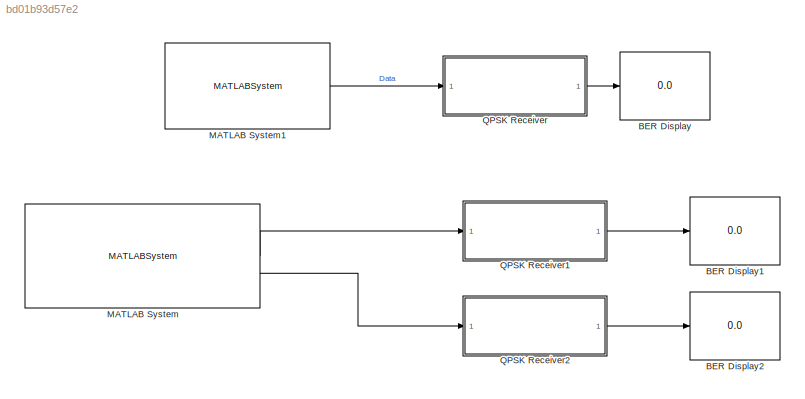
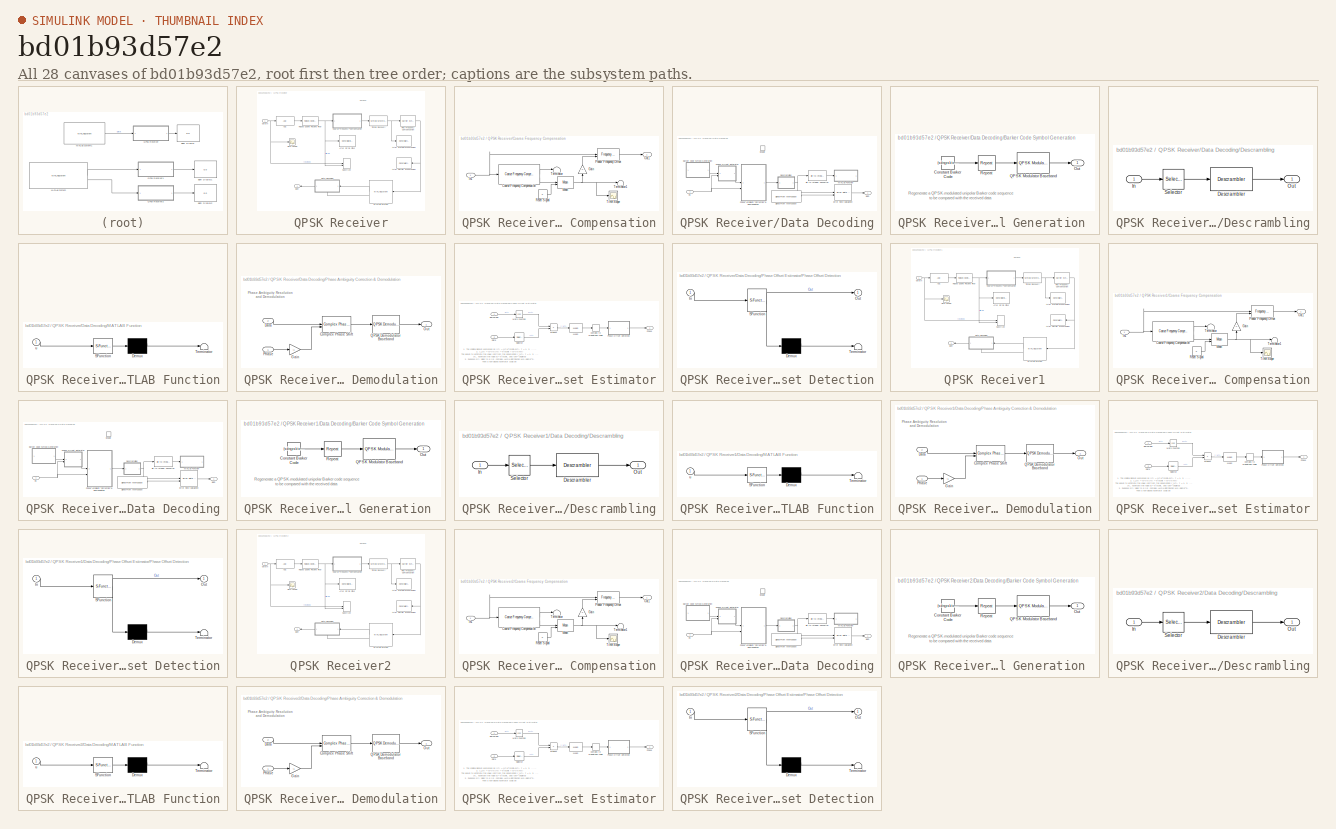
[diagram: thumbnail index - all 28 canvases of the model, root first then tree order]
MODEL slx_bd01b93d57e2
KIND model
CONFIG AbsTol = auto
CONFIG EnableMultiTasking = off
CONFIG FixedStep = auto
CONFIG MaxStep = auto
CONFIG MinStep = auto
CONFIG RelTol = 1e-3
CONFIG SampleTimeConstraint = Unconstrained
CONFIG SolverName = FixedStepDiscrete
CONFIG StartTime = 0.0
CONFIG StopTime = inf
BLOCK [Display] BER Display
  Commented = on
  Decimation = 1
BLOCK [Display] BER Display1
  Decimation = 1
BLOCK [Display] BER Display2
  Decimation = 1
BLOCK [MATLABSystem] MATLAB System
  MaskDisplay = disp(['Nuand' char(10) 'bladeRF 2.0' char(10) 'MIMO']);\nport_label('output',1,'RX1 Samples');\nport_label('output',2,'RX2 Samples');
  MaskType = bladeRF_MIMO_Simulink
  SimulateUsing = Interpreted execution
  System = bladeRF_MIMO_Simulink
  device_string = *:instance=0
  enable_overrun = off
  enable_rx = on
  enable_rx2 = on
  enable_rx2_biastee = off
  enable_rx_biastee = off
  enable_tx = off
  enable_tx2 = off
  enable_tx2_biastee = off
  enable_tx_biastee = off
  enable_underrun = off
  loopback_mode = None
  rx2_agc = SLOW
  rx2_bandwidth = 1.5
  rx2_frequency = sdrqpsktx.BladeRF_Frequency
  rx2_gain = sdrqpsktx.BladeRF_Gain_Rx
  rx2_samplerate = sdrqpsktx.BladeRF_SampleRate
  rx_agc = SLOW
  rx_bandwidth = 1.5
  rx_buf_size = sdrqpsktx.BladeRF.stream.buffer_size
  rx_frequency = sdrqpsktx.BladeRF_Frequency
  rx_gain = sdrqpsktx.BladeRF_Gain_Rx
  rx_num_buffers = sdrqpsktx.BladeRF.stream.n_buffers
  rx_num_transfers = sdrqpsktx.BladeRF.stream.n_transfers
  rx_samplerate = sdrqpsktx.BladeRF_SampleRate
  rx_step_size = sdrqpsktx.BladeRF_FrameLength
  rx_timeout_ms = sdrqpsktx.BladeRF.stream.timeout
  tx2_bandwidth = 1.5
  tx2_frequency = sdrqpsktx.BladeRF_Frequency
  tx2_gain = sdrqpsktx.BladeRF_Gain_Tx
  tx2_samplerate = sdrqpsktx.BladeRF_SampleRate
  tx_bandwidth = 1.5
  tx_buf_size = sdrqpsktx.BladeRF.stream.buffer_size
  tx_frequency = sdrqpsktx.BladeRF_Frequency
  tx_gain = sdrqpsktx.BladeRF_Gain_Tx
  tx_num_buffers = sdrqpsktx.BladeRF.stream.n_buffers
  tx_num_transfers = sdrqpsktx.BladeRF.stream.n_transfers
  tx_samplerate = sdrqpsktx.BladeRF_SampleRate
  tx_step_size = sdrqpsktx.BladeRF_FrameLength
  tx_timeout_ms = sdrqpsktx.BladeRF.stream.timeout
  verbosity = Info
  xb200 = off
BLOCK [MATLABSystem] MATLAB System1
  Commented = on
  MaskDisplay = disp(['Nuand' char(10) 'bladeRF']);\nport_label('output',1,'RX Samples');
  MaskType = bladeRF_Simulink
  SimulateUsing = Interpreted execution
  System = bladeRF_Simulink
  device_string = *:instance=0
  enable_overrun = off
  enable_rx = on
  enable_rx_biastee = off
  enable_tx = off
  enable_tx_biastee = off
  enable_underrun = off
  loopback_mode = None
  rx_agc = SLOW
  rx_bandwidth = 1.5
  rx_buf_size = sdrqpsktx.BladeRF.stream.buffer_size
  rx_frequency = sdrqpsktx.BladeRF_Frequency
  rx_gain = sdrqpsktx.BladeRF_Gain_Rx
  rx_num_buffers = sdrqpsktx.BladeRF.stream.n_buffers
  rx_num_transfers = sdrqpsktx.BladeRF.stream.n_transfers
  rx_samplerate = sdrqpsktx.BladeRF_SampleRate
  rx_step_size = sdrqpsktx.BladeRF_FrameLength
  rx_timeout_ms = sdrqpsktx.BladeRF.stream.timeout
  tx_bandwidth = 1.5
  tx_buf_size = sdrqpsktx.BladeRF.stream.buffer_size
  tx_frequency = sdrqpsktx.BladeRF_Frequency
  tx_gain = sdrqpsktx.BladeRF_Gain_Tx
  tx_num_buffers = sdrqpsktx.BladeRF.stream.n_buffers
  tx_num_transfers = sdrqpsktx.BladeRF.stream.n_transfers
  tx_samplerate = sdrqpsktx.BladeRF_SampleRate
  tx_step_size = sdrqpsktx.BladeRF_FrameLength
  tx_timeout_ms = sdrqpsktx.BladeRF.stream.timeout
  verbosity = Info
  xb200 = off
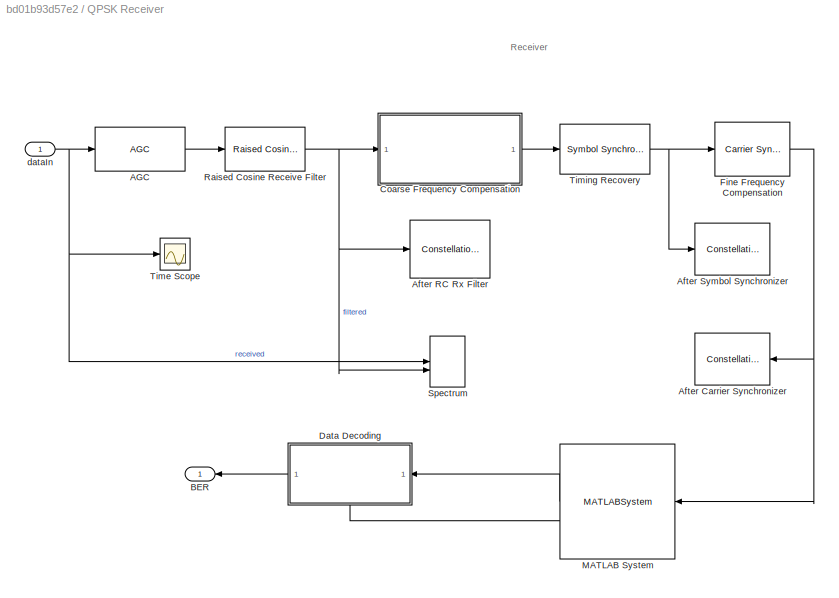
BLOCK [SubSystem] QPSK Receiver
  Commented = on
  NameLocation = top
BLOCK [Reference] QPSK Receiver/AGC  REF=commrfcorlib/AGC
  SourceBlock = commrfcorlib/AGC
  SourceType = AGC
BLOCK [ConstellationDiagram] QPSK Receiver/After Carrier Synchronizer
  Commented = on
  DefaultConfigurationName = comm.scopes.ConstellationDiagramBlockCfg
  GraphicalSettings = {"Style":{"BackgroundColor":[0.15686274509803921,0.15686274509803921,0.15686274509803921],"AxesColor":[0,0,0],"LabelsColor":[0.68627450980392157,0.68627450980392157,0.68627450980392157],"LineStyle":["NONE"],"LineColor":[1,0,0],"LineWidth":1,"Marker":["+"],"IsRefLine":true,"FontSize":"9.5"},"ReferenceConstellation":{"AverageReferencePower":"2","RefConstellationValue":"[0.7071+0.7071i  -0.7071+0.707...<+100ch>  <repeated x3 — deduplicated; at blocks: After Carrier Synchronizer>
  ReferenceConstellation = QPSK
  SamplesPerSymbol = sdrqpsktx.Interpolation
  ScopeFrameLocation = window
  ScopeSpecificationString = comm.scopes.ConstellationDiagramBlockCfg('CurrentConfiguration', extmgr.ConfigurationSet(extmgr.Configuration('Core','General UI',true),extmgr.Configuration('Core','Source UI',true),extmgr.Configuration('Sources','WiredSimulink',true),extmgr.Configuration('Sources','File',false),extmgr.Configuration('Sources','Workspace',false),extmgr.Configuration('Sources','Streaming',false),extmgr.Configuration...<+3012ch>  <repeated x3 — deduplicated; at blocks: After Carrier Synchronizer>
  SymbolsToDisplay = sdrqpsktx.FrameSize
  SymbolsToDisplaySource = Property
  Tag = ScatterPlot
  Title = After Carrier Synchronizer
  WasSavedAsWebScope = on
  WindowPosition = [869.000000,524.000000,425.000000,391.000000,]
  XLimits = [-3.98,3.98]
  YLimits = [-3 3]
BLOCK [ConstellationDiagram] QPSK Receiver/After RC Rx Filter
  Commented = on
  DefaultConfigurationName = comm.scopes.ConstellationDiagramBlockCfg
  GraphicalSettings = {"Style":{"BackgroundColor":[0.15686274509803921,0.15686274509803921,0.15686274509803921],"AxesColor":[0,0,0],"LabelsColor":[0.68627450980392157,0.68627450980392157,0.68627450980392157],"LineStyle":["NONE"],"LineColor":[1,0,0],"LineWidth":1,"Marker":["+"],"IsRefLine":true,"FontSize":"small"},"ReferenceConstellation":{"AverageReferencePower":"2","RefConstellationValue":"[0.7071+0.7071i  -0.7071+0.7...<+102ch>  <repeated x3 — deduplicated; at blocks: After RC Rx Filter>
  ReferenceConstellation = QPSK
  SamplesPerSymbol = sdrqpsktx.Interpolation
  ScopeFrameLocation = window
  ScopeSpecificationString = comm.scopes.ConstellationDiagramBlockCfg('CurrentConfiguration', extmgr.ConfigurationSet(extmgr.Configuration('Core','General UI',true),extmgr.Configuration('Core','Source UI',true),extmgr.Configuration('Sources','WiredSimulink',true),extmgr.Configuration('Sources','Workspace',false),extmgr.Configuration('Sources','Streaming',false),extmgr.Configuration('Sources','Simulink',false),extmgr.Configura...<+2989ch>  <repeated x3 — deduplicated; at blocks: After RC Rx Filter>
  SymbolsToDisplay = sdrqpsktx.FrameSize
  Tag = ScatterPlot
  Title = After Raised Cosine Rx Filter
  WasSavedAsWebScope = on
  WindowPosition = [99.000000,533.000000,320.000000,366.000000,]
  XLimits = [-6.47,6.51]
  YLimits = [-3.17,3.21]
BLOCK [ConstellationDiagram] QPSK Receiver/After Symbol Synchronizer
  Commented = on
  DefaultConfigurationName = comm.scopes.ConstellationDiagramBlockCfg
  GraphicalSettings = {"Style":{"BackgroundColor":[0.15686274509803921,0.15686274509803921,0.15686274509803921],"AxesColor":[0,0,0],"LabelsColor":[0.68627450980392157,0.68627450980392157,0.68627450980392157],"LineStyle":["NONE"],"LineColor":[1,0,0],"LineWidth":1,"Marker":["+"],"IsRefLine":true,"FontSize":"9"},"ReferenceConstellation":{"AverageReferencePower":"2","RefConstellationValue":"[0.7071+0.7071i  -0.7071+0.7071i...<+98ch>  <repeated x3 — deduplicated; at blocks: After Symbol Synchronizer>
  ReferenceConstellation = QPSK
  SamplesPerSymbol = 2
  ScopeFrameLocation = window
  ScopeSpecificationString = comm.scopes.ConstellationDiagramBlockCfg('CurrentConfiguration', extmgr.ConfigurationSet(extmgr.Configuration('Core','General UI',true),extmgr.Configuration('Core','Source UI',true),extmgr.Configuration('Sources','WiredSimulink',true),extmgr.Configuration('Sources','File',false),extmgr.Configuration('Sources','Workspace',false),extmgr.Configuration('Sources','Streaming',false),extmgr.Configuration...<+2982ch>  <repeated x3 — deduplicated; at blocks: After Symbol Synchronizer>
  SymbolsToDisplay = sdrqpsktx.FrameSize
  SymbolsToDisplaySource = Property
  Tag = ScatterPlot
  Title = After Symbol Synchronizer
  WasSavedAsWebScope = on
  WindowPosition = [436.000000,520.000000,411.000000,390.000000,]
  XLimits = [-3.26,3.24]
  YLimits = [-3.01,2.99]
BLOCK [Outport] QPSK Receiver/BER
  VectorParamsAs1DForOutWhenUnconnected = off
BLOCK [SubSystem] QPSK Receiver/Coarse Frequency Compensation
BLOCK [Reference] QPSK Receiver/Coarse Frequency Compensation/Coarse Frequency Compensation  REF=commrfcorlib/Coarse Frequency
Compensator
  SourceBlock = commrfcorlib/Coarse Frequency\nCompensator
  SourceType = Coarse Frequency Compensator
BLOCK [Gain] QPSK Receiver/Coarse Frequency Compensation/Gain
  Gain = -1
  NameLocation = right
BLOCK [Inport] QPSK Receiver/Coarse Frequency Compensation/In1
BLOCK [Reference] QPSK Receiver/Coarse Frequency Compensation/Mean  REF=dspstat3/Mean
  SourceBlock = dspstat3/Mean
  SourceType = Mean
  UserDataPersistent = on
BLOCK [Outport] QPSK Receiver/Coarse Frequency Compensation/Out1
  VectorParamsAs1DForOutWhenUnconnected = off
BLOCK [Reference] QPSK Receiver/Coarse Frequency Compensation/Phase// Frequency Offset  REF=commrflib2/Phase//
Frequency
Offset
  SourceBlock = commrflib2/Phase//\nFrequency\nOffset
  SourceType = Phase/Frequency Offset
BLOCK [Constant] QPSK Receiver/Coarse Frequency Compensation/Reset Signal
  Value = 0
BLOCK [Terminator] QPSK Receiver/Coarse Frequency Compensation/Terminator
BLOCK [Terminator] QPSK Receiver/Coarse Frequency Compensation/Terminator1
BLOCK [Scope] QPSK Receiver/Coarse Frequency Compensation/Time Scope
  Commented = on
  DefaultConfigurationName = spbscopes.TimeScopeBlockCfg
  Floating = off
  NumInputPorts = 1
  ScopeSpecificationString = spbscopes.TimeScopeBlockCfg('CurrentConfiguration', extmgr.ConfigurationSet(extmgr.Configuration('Core','General UI',true),extmgr.Configuration('Core','Source UI',true),extmgr.Configuration('Sources','WiredSimulink',true,'DataLoggingVariableName','ScopeData1'),extmgr.Configuration('Visuals','Time Domain',true),extmgr.Configuration('Tools','Plot Navigation',true),extmgr.Configuration('Tools','Measu...<+34ch>  <repeated x3 — deduplicated; at blocks: Time Scope>
  UserDataPersistent = on
BLOCK [SubSystem] QPSK Receiver/Data Decoding
  NameLocation = top
BLOCK [Outport] QPSK Receiver/Data Decoding/BER
  VectorParamsAs1DForOutWhenUnconnected = off
BLOCK [SubSystem] QPSK Receiver/Data Decoding/Barker Code Symbol Generation 
BLOCK [Constant] QPSK Receiver/Data Decoding/Barker Code Symbol Generation /Constant Barker Code
  OutDataTypeStr = double
  Value = (sdrqpsktx.BarkerCode)' > 0
  VectorParams1D = off
BLOCK [Outport] QPSK Receiver/Data Decoding/Barker Code Symbol Generation /Out
  VectorParamsAs1DForOutWhenUnconnected = off
BLOCK [Reference] QPSK Receiver/Data Decoding/Barker Code Symbol Generation /QPSK Modulator Baseband  REF=commdigbbndpm3/QPSK
Modulator
Baseband
  SourceBlock = commdigbbndpm3/QPSK\nModulator\nBaseband
  SourceType = QPSK Modulator Baseband
BLOCK [Reference] QPSK Receiver/Data Decoding/Barker Code Symbol Generation /Repeat  REF=dspsigops/Repeat
  SourceBlock = dspsigops/Repeat
  SourceType = Repeat
  UserDataPersistent = on
BLOCK [Reference] QPSK Receiver/Data Decoding/Bit to Integer Converter  REF=simulink/Logic and Bit
Operations/Bit to Integer
Converter
  LibrarySourceBlock = commutil2/Bit to Integer\nConverter
  SourceBlock = simulink/Logic and Bit\nOperations/Bit to Integer\nConverter
  SourceType = Bit to Integer Converter
BLOCK [SubSystem] QPSK Receiver/Data Decoding/Descrambling
BLOCK [Reference] QPSK Receiver/Data Decoding/Descrambling/Descrambler  REF=commsequence2/Descrambler
  SourceBlock = commsequence2/Descrambler
  SourceType = Descrambler
BLOCK [Inport] QPSK Receiver/Data Decoding/Descrambling/In
BLOCK [Outport] QPSK Receiver/Data Decoding/Descrambling/Out
  VectorParamsAs1DForOutWhenUnconnected = off
BLOCK [Selector] QPSK Receiver/Data Decoding/Descrambling/Selector
  IndexOptions = Index vector (dialog)
  Indices = [sdrqpsktx.HeaderLength+(1 : sdrqpsktx.PayloadLength)]
  OutputSizes = 1
BLOCK [EnablePort] QPSK Receiver/Data Decoding/Enable
BLOCK [Reference] QPSK Receiver/Data Decoding/Error Rate Calculation  REF=commsink2/Error Rate
Calculation
  SourceBlock = commsink2/Error Rate\nCalculation
  SourceType = Error Rate Calculation
BLOCK [SubSystem] QPSK Receiver/Data Decoding/MATLAB Function
  ErrorFcn = Stateflow.Translate.translate
  PermitHierarchicalResolution = ExplicitOnly
  SFBlockType = MATLAB Function
  TreatAsAtomicUnit = on
BLOCK [Demux] QPSK Receiver/Data Decoding/MATLAB Function/ Demux 
  Outputs = 1
BLOCK [S-Function] QPSK Receiver/Data Decoding/MATLAB Function/ SFunction 
  EnableBusSupport = on
  FunctionName = sf_sfun
  PortCounts = [1 1]
  SFcnIsStateOwnerBlock = off
  SFunctionDeploymentMode = off
  Tag = Stateflow S-Function 1
BLOCK [Terminator] QPSK Receiver/Data Decoding/MATLAB Function/ Terminator 
BLOCK [Inport] QPSK Receiver/Data Decoding/MATLAB Function/u
BLOCK [SubSystem] QPSK Receiver/Data Decoding/Phase Ambiguity Correction & Demodulation
BLOCK [Reference] QPSK Receiver/Data Decoding/Phase Ambiguity Correction & Demodulation/Complex Phase Shift  REF=commutil2/Complex Phase
Shift
  SourceBlock = commutil2/Complex Phase\nShift
  SourceType = Complex Phase Shift
BLOCK [Inport] QPSK Receiver/Data Decoding/Phase Ambiguity Correction & Demodulation/Data
  Port = 2
BLOCK [Gain] QPSK Receiver/Data Decoding/Phase Ambiguity Correction & Demodulation/Gain
  Gain = -1
  OutDataTypeStr = Inherit: Same as input
BLOCK [Outport] QPSK Receiver/Data Decoding/Phase Ambiguity Correction & Demodulation/Out
  VectorParamsAs1DForOutWhenUnconnected = off
BLOCK [Inport] QPSK Receiver/Data Decoding/Phase Ambiguity Correction & Demodulation/Phase
BLOCK [Reference] QPSK Receiver/Data Decoding/Phase Ambiguity Correction & Demodulation/QPSK Demodulator Baseband  REF=commdigbbndpm3/QPSK
Demodulator
Baseband
  SourceBlock = commdigbbndpm3/QPSK\nDemodulator\nBaseband
  SourceType = QPSK Demodulator Baseband
BLOCK [SubSystem] QPSK Receiver/Data Decoding/Phase Offset Estimator
BLOCK [Inport] QPSK Receiver/Data Decoding/Phase Offset Estimator/BarkerRef
BLOCK [ComplexToMagnitudeAngle] QPSK Receiver/Data Decoding/Phase Offset Estimator/Complex to Magnitude-Angle
  Output = Angle
BLOCK [Inport] QPSK Receiver/Data Decoding/Phase Offset Estimator/Data
  Port = 2
BLOCK [Math] QPSK Receiver/Data Decoding/Phase Offset Estimator/Math Function
  Operator = conj
  SignedPower = on
BLOCK [Reference] QPSK Receiver/Data Decoding/Phase Offset Estimator/Mean  REF=dspstat3/Mean
  SourceBlock = dspstat3/Mean
  SourceType = Mean
  UserDataPersistent = on
BLOCK [Outport] QPSK Receiver/Data Decoding/Phase Offset Estimator/Phase
  VectorParamsAs1DForOutWhenUnconnected = off
BLOCK [SubSystem] QPSK Receiver/Data Decoding/Phase Offset Estimator/Phase Offset Detection
  ErrorFcn = Stateflow.Translate.translate
  PermitHierarchicalResolution = ExplicitOnly
  SFBlockType = MATLAB Function
  TreatAsAtomicUnit = on
BLOCK [Demux] QPSK Receiver/Data Decoding/Phase Offset Estimator/Phase Offset Detection/ Demux 
  Outputs = 1
BLOCK [S-Function] QPSK Receiver/Data Decoding/Phase Offset Estimator/Phase Offset Detection/ SFunction 
  EnableBusSupport = on
  FunctionName = sf_sfun
  PortCounts = [1 2]
  SFcnIsStateOwnerBlock = off
  SFunctionDeploymentMode = off
  Tag = Stateflow S-Function 3
BLOCK [Terminator] QPSK Receiver/Data Decoding/Phase Offset Estimator/Phase Offset Detection/ Terminator 
BLOCK [Inport] QPSK Receiver/Data Decoding/Phase Offset Estimator/Phase Offset Detection/In
BLOCK [Outport] QPSK Receiver/Data Decoding/Phase Offset Estimator/Phase Offset Detection/Out
  VectorParamsAs1DForOutWhenUnconnected = off
BLOCK [Product] QPSK Receiver/Data Decoding/Phase Offset Estimator/Product
  RndMeth = Zero
BLOCK [Selector] QPSK Receiver/Data Decoding/Phase Offset Estimator/Selector
  IndexOptions = Index vector (dialog)
  Indices = [1:sdrqpsktx.BarkerLength]
  OutputSizes = 1
BLOCK [Inport] QPSK Receiver/Data Decoding/Rx
BLOCK [Reference] QPSK Receiver/Data Decoding/Signal From Workspace  REF=dspsrcs4/Signal From
Workspace
  SourceBlock = dspsrcs4/Signal From\nWorkspace
  SourceType = Signal From Workspace
BLOCK [Reference] QPSK Receiver/Fine Frequency Compensation  REF=commsync2/Carrier Synchronizer
  SourceBlock = commsync2/Carrier Synchronizer
  SourceType = Carrier Synchronizer
BLOCK [MATLABSystem] QPSK Receiver/MATLAB System
  MaskDisplay = disp(['Frame' char(10) 'Synchronizer']);\nport_label('input',1,'x');\nport_label('output',1,'Frame');\nport_label('output',2,'Valid');
  MaskType = FrameSynchronizer
  OutputLength = sdrqpsktx.FrameSize
  Preamble = sqrt(2)/2 * (-1-1i) * (sdrqpsktx.BarkerCode)'
  SimulateUsing = Code generation
  System = FrameSynchronizer
  Threshold = 0.9
BLOCK [Reference] QPSK Receiver/Raised Cosine Receive Filter  REF=commfilt2/Raised Cosine
Receive Filter
  SourceBlock = commfilt2/Raised Cosine\nReceive Filter
  SourceType = Raised Cosine Receive Filter
  UserDataPersistent = on
BLOCK [SpectrumAnalyzer] QPSK Receiver/Spectrum
  AveragingMethod = Running
  AxesScaling = Manual
  Commented = on
  FFTLength = 128
  GraphicalSettings = {"GraphicalSettings":{"Style":{"BackgroundColor":[0.1568627450980392,0.1568627450980392,0.1568627450980392],"AxesColor":[0,0,0],"LabelsColor":[0.4,0.4,0.4],"PreserveColors":false,"Visible":[true,true],"LineStyle":["-","-"],"LineColor":[[1,1,0.06666666666666667],[0.07058823529411765,0.6235294117647059,1]],"LineWidth":[0.5,0.5],"Marker":["none","none"],"FontSize":"small"},"Cursors":{"Enabled":false,...<+849ch>  <repeated x3 — deduplicated; at blocks: Spectrum>
  Method = Welch
  NumInputPorts = 2
  RBW = 75
  RBWSource = Property
  SampleRate = 100000
  ScopeFrameLocation = window
  ScopeSpecificationString = spbscopes.SpectrumAnalyzerBlockCfg('CurrentConfiguration', extmgr.ConfigurationSet(extmgr.Configuration('Core','General UI',true,'DisplayFullSourceName',true,'ShowPlaybackToolbar',false,'FigureColor',[0.701960784313725 0.701960784313725 0.701960784313725]),extmgr.Configuration('Core','Source UI',true),extmgr.Configuration('Sources','WiredSimulink',true),extmgr.Configuration('Sources','Streaming',f...<+3722ch>  <repeated x3 — deduplicated; at blocks: Spectrum>
  ShowLegend = on
  Span = 2000000.0000000002
  SpectralAverages = 2
  SpectrumUnits = dBW
  StartFrequency = -1000000.0000000001
  StopFrequency = 1000000.0000000001
  Title = After Raised Cosine Rx Filter
  WasSavedAsWebScope = on
  WindowPosition = [271.000000,314.000000,762.000000,519.000000,]
  YLabel = Power Spectrum
  YLimits = [-137.6344738236879266 40]
BLOCK [Scope] QPSK Receiver/Time Scope
  Commented = on
  DefaultConfigurationName = spbscopes.TimeScopeBlockCfg
  Floating = off
  NumInputPorts = 1
  ScopeSpecificationString = spbscopes.TimeScopeBlockCfg('CurrentConfiguration', extmgr.ConfigurationSet(extmgr.Configuration('Core','General UI',true),extmgr.Configuration('Core','Source UI',true),extmgr.Configuration('Sources','WiredSimulink',true,'DataLoggingVariableName','ScopeData1'),extmgr.Configuration('Visuals','Time Domain',true,'DisplayPropertyDefaults',struct('MinYLimReal','-1','MaxYLimReal','1','YLabelReal','Ampli...<+1469ch>  <repeated x3 — deduplicated; at blocks: Time Scope>
  UserDataPersistent = on
BLOCK [Reference] QPSK Receiver/Timing Recovery  REF=commsync2/Symbol Synchronizer
  SourceBlock = commsync2/Symbol Synchronizer
  SourceType = Symbol Synchronizer
BLOCK [Inport] QPSK Receiver/dataIn
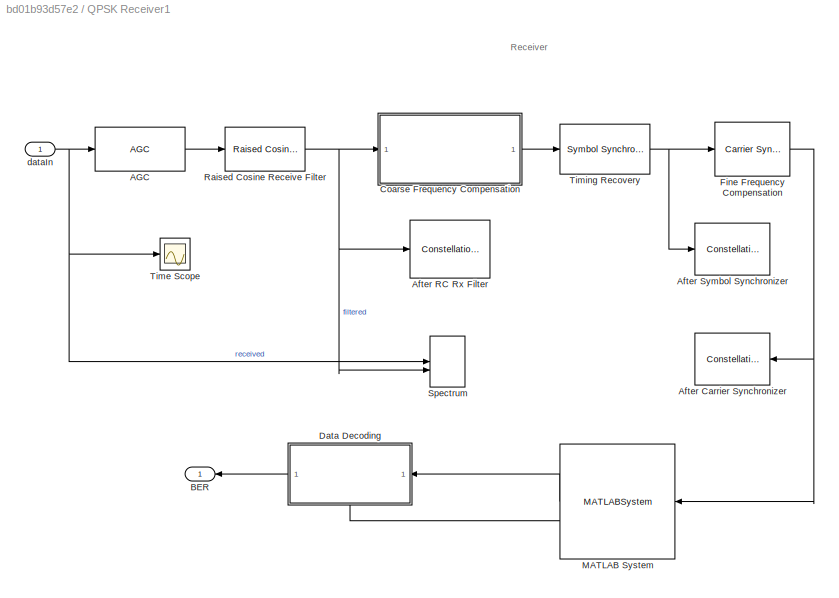
BLOCK [SubSystem] QPSK Receiver1
  NameLocation = top
BLOCK [Reference] QPSK Receiver1/AGC  REF=commrfcorlib/AGC
  SourceBlock = commrfcorlib/AGC
  SourceType = AGC
BLOCK [ConstellationDiagram] QPSK Receiver1/After Carrier Synchronizer
  Commented = on
  DefaultConfigurationName = comm.scopes.ConstellationDiagramBlockCfg
  ReferenceConstellation = QPSK
  SamplesPerSymbol = sdrqpsktx.Interpolation
  ScopeFrameLocation = window
  SymbolsToDisplay = sdrqpsktx.FrameSize
  SymbolsToDisplaySource = Property
  Tag = ScatterPlot
  Title = After Carrier Synchronizer
  WasSavedAsWebScope = on
  WindowPosition = [869.000000,524.000000,425.000000,391.000000,]
  XLimits = [-3.98,3.98]
  YLimits = [-3 3]
BLOCK [ConstellationDiagram] QPSK Receiver1/After RC Rx Filter
  Commented = on
  DefaultConfigurationName = comm.scopes.ConstellationDiagramBlockCfg
  ReferenceConstellation = QPSK
  SamplesPerSymbol = sdrqpsktx.Interpolation
  ScopeFrameLocation = window
  SymbolsToDisplay = sdrqpsktx.FrameSize
  Tag = ScatterPlot
  Title = After Raised Cosine Rx Filter
  WasSavedAsWebScope = on
  WindowPosition = [99.000000,533.000000,320.000000,366.000000,]
  XLimits = [-6.47,6.51]
  YLimits = [-3.17,3.21]
BLOCK [ConstellationDiagram] QPSK Receiver1/After Symbol Synchronizer
  Commented = on
  DefaultConfigurationName = comm.scopes.ConstellationDiagramBlockCfg
  ReferenceConstellation = QPSK
  SamplesPerSymbol = 2
  ScopeFrameLocation = window
  SymbolsToDisplay = sdrqpsktx.FrameSize
  SymbolsToDisplaySource = Property
  Tag = ScatterPlot
  Title = After Symbol Synchronizer
  WasSavedAsWebScope = on
  WindowPosition = [436.000000,520.000000,411.000000,390.000000,]
  XLimits = [-3.26,3.24]
  YLimits = [-3.01,2.99]
BLOCK [Outport] QPSK Receiver1/BER
  VectorParamsAs1DForOutWhenUnconnected = off
BLOCK [SubSystem] QPSK Receiver1/Coarse Frequency Compensation
BLOCK [Reference] QPSK Receiver1/Coarse Frequency Compensation/Coarse Frequency Compensation  REF=commrfcorlib/Coarse Frequency
Compensator
  SourceBlock = commrfcorlib/Coarse Frequency\nCompensator
  SourceType = Coarse Frequency Compensator
BLOCK [Gain] QPSK Receiver1/Coarse Frequency Compensation/Gain
  Gain = -1
  NameLocation = right
BLOCK [Inport] QPSK Receiver1/Coarse Frequency Compensation/In1
BLOCK [Reference] QPSK Receiver1/Coarse Frequency Compensation/Mean  REF=dspstat3/Mean
  SourceBlock = dspstat3/Mean
  SourceType = Mean
  UserDataPersistent = on
BLOCK [Outport] QPSK Receiver1/Coarse Frequency Compensation/Out1
  VectorParamsAs1DForOutWhenUnconnected = off
BLOCK [Reference] QPSK Receiver1/Coarse Frequency Compensation/Phase// Frequency Offset  REF=commrflib2/Phase//
Frequency
Offset
  SourceBlock = commrflib2/Phase//\nFrequency\nOffset
  SourceType = Phase/Frequency Offset
BLOCK [Constant] QPSK Receiver1/Coarse Frequency Compensation/Reset Signal
  Value = 0
BLOCK [Terminator] QPSK Receiver1/Coarse Frequency Compensation/Terminator
BLOCK [Terminator] QPSK Receiver1/Coarse Frequency Compensation/Terminator1
BLOCK [Scope] QPSK Receiver1/Coarse Frequency Compensation/Time Scope
  Commented = on
  DefaultConfigurationName = spbscopes.TimeScopeBlockCfg
  Floating = off
  NumInputPorts = 1
  UserDataPersistent = on
BLOCK [SubSystem] QPSK Receiver1/Data Decoding
  NameLocation = top
BLOCK [Outport] QPSK Receiver1/Data Decoding/BER
  VectorParamsAs1DForOutWhenUnconnected = off
BLOCK [SubSystem] QPSK Receiver1/Data Decoding/Barker Code Symbol Generation 
BLOCK [Constant] QPSK Receiver1/Data Decoding/Barker Code Symbol Generation /Constant Barker Code
  OutDataTypeStr = double
  Value = (sdrqpsktx.BarkerCode)' > 0
  VectorParams1D = off
BLOCK [Outport] QPSK Receiver1/Data Decoding/Barker Code Symbol Generation /Out
  VectorParamsAs1DForOutWhenUnconnected = off
BLOCK [Reference] QPSK Receiver1/Data Decoding/Barker Code Symbol Generation /QPSK Modulator Baseband  REF=commdigbbndpm3/QPSK
Modulator
Baseband
  SourceBlock = commdigbbndpm3/QPSK\nModulator\nBaseband
  SourceType = QPSK Modulator Baseband
BLOCK [Reference] QPSK Receiver1/Data Decoding/Barker Code Symbol Generation /Repeat  REF=dspsigops/Repeat
  SourceBlock = dspsigops/Repeat
  SourceType = Repeat
  UserDataPersistent = on
BLOCK [Reference] QPSK Receiver1/Data Decoding/Bit to Integer Converter  REF=simulink/Logic and Bit
Operations/Bit to Integer
Converter
  LibrarySourceBlock = commutil2/Bit to Integer\nConverter
  SourceBlock = simulink/Logic and Bit\nOperations/Bit to Integer\nConverter
  SourceType = Bit to Integer Converter
BLOCK [SubSystem] QPSK Receiver1/Data Decoding/Descrambling
BLOCK [Reference] QPSK Receiver1/Data Decoding/Descrambling/Descrambler  REF=commsequence2/Descrambler
  SourceBlock = commsequence2/Descrambler
  SourceType = Descrambler
BLOCK [Inport] QPSK Receiver1/Data Decoding/Descrambling/In
BLOCK [Outport] QPSK Receiver1/Data Decoding/Descrambling/Out
  VectorParamsAs1DForOutWhenUnconnected = off
BLOCK [Selector] QPSK Receiver1/Data Decoding/Descrambling/Selector
  IndexOptions = Index vector (dialog)
  Indices = [sdrqpsktx.HeaderLength+(1 : sdrqpsktx.PayloadLength)]
  OutputSizes = 1
BLOCK [EnablePort] QPSK Receiver1/Data Decoding/Enable
BLOCK [Reference] QPSK Receiver1/Data Decoding/Error Rate Calculation  REF=commsink2/Error Rate
Calculation
  SourceBlock = commsink2/Error Rate\nCalculation
  SourceType = Error Rate Calculation
BLOCK [SubSystem] QPSK Receiver1/Data Decoding/MATLAB Function
  ErrorFcn = Stateflow.Translate.translate
  PermitHierarchicalResolution = ExplicitOnly
  SFBlockType = MATLAB Function
  TreatAsAtomicUnit = on
BLOCK [Demux] QPSK Receiver1/Data Decoding/MATLAB Function/ Demux 
  Outputs = 1
BLOCK [S-Function] QPSK Receiver1/Data Decoding/MATLAB Function/ SFunction 
  EnableBusSupport = on
  FunctionName = sf_sfun
  PortCounts = [1 1]
  SFcnIsStateOwnerBlock = off
  SFunctionDeploymentMode = off
  Tag = Stateflow S-Function 2
BLOCK [Terminator] QPSK Receiver1/Data Decoding/MATLAB Function/ Terminator 
BLOCK [Inport] QPSK Receiver1/Data Decoding/MATLAB Function/u
BLOCK [SubSystem] QPSK Receiver1/Data Decoding/Phase Ambiguity Correction & Demodulation
BLOCK [Reference] QPSK Receiver1/Data Decoding/Phase Ambiguity Correction & Demodulation/Complex Phase Shift  REF=commutil2/Complex Phase
Shift
  SourceBlock = commutil2/Complex Phase\nShift
  SourceType = Complex Phase Shift
BLOCK [Inport] QPSK Receiver1/Data Decoding/Phase Ambiguity Correction & Demodulation/Data
  Port = 2
BLOCK [Gain] QPSK Receiver1/Data Decoding/Phase Ambiguity Correction & Demodulation/Gain
  Gain = -1
  OutDataTypeStr = Inherit: Same as input
BLOCK [Outport] QPSK Receiver1/Data Decoding/Phase Ambiguity Correction & Demodulation/Out
  VectorParamsAs1DForOutWhenUnconnected = off
BLOCK [Inport] QPSK Receiver1/Data Decoding/Phase Ambiguity Correction & Demodulation/Phase
BLOCK [Reference] QPSK Receiver1/Data Decoding/Phase Ambiguity Correction & Demodulation/QPSK Demodulator Baseband  REF=commdigbbndpm3/QPSK
Demodulator
Baseband
  SourceBlock = commdigbbndpm3/QPSK\nDemodulator\nBaseband
  SourceType = QPSK Demodulator Baseband
BLOCK [SubSystem] QPSK Receiver1/Data Decoding/Phase Offset Estimator
BLOCK [Inport] QPSK Receiver1/Data Decoding/Phase Offset Estimator/BarkerRef
BLOCK [ComplexToMagnitudeAngle] QPSK Receiver1/Data Decoding/Phase Offset Estimator/Complex to Magnitude-Angle
  Output = Angle
BLOCK [Inport] QPSK Receiver1/Data Decoding/Phase Offset Estimator/Data
  Port = 2
BLOCK [Math] QPSK Receiver1/Data Decoding/Phase Offset Estimator/Math Function
  Operator = conj
  SignedPower = on
BLOCK [Reference] QPSK Receiver1/Data Decoding/Phase Offset Estimator/Mean  REF=dspstat3/Mean
  SourceBlock = dspstat3/Mean
  SourceType = Mean
  UserDataPersistent = on
BLOCK [Outport] QPSK Receiver1/Data Decoding/Phase Offset Estimator/Phase
  VectorParamsAs1DForOutWhenUnconnected = off
BLOCK [SubSystem] QPSK Receiver1/Data Decoding/Phase Offset Estimator/Phase Offset Detection
  ErrorFcn = Stateflow.Translate.translate
  PermitHierarchicalResolution = ExplicitOnly
  SFBlockType = MATLAB Function
  TreatAsAtomicUnit = on
BLOCK [Demux] QPSK Receiver1/Data Decoding/Phase Offset Estimator/Phase Offset Detection/ Demux 
  Outputs = 1
BLOCK [S-Function] QPSK Receiver1/Data Decoding/Phase Offset Estimator/Phase Offset Detection/ SFunction 
  EnableBusSupport = on
  FunctionName = sf_sfun
  PortCounts = [1 2]
  SFcnIsStateOwnerBlock = off
  SFunctionDeploymentMode = off
  Tag = Stateflow S-Function 4
BLOCK [Terminator] QPSK Receiver1/Data Decoding/Phase Offset Estimator/Phase Offset Detection/ Terminator 
BLOCK [Inport] QPSK Receiver1/Data Decoding/Phase Offset Estimator/Phase Offset Detection/In
BLOCK [Outport] QPSK Receiver1/Data Decoding/Phase Offset Estimator/Phase Offset Detection/Out
  VectorParamsAs1DForOutWhenUnconnected = off
BLOCK [Product] QPSK Receiver1/Data Decoding/Phase Offset Estimator/Product
  RndMeth = Zero
BLOCK [Selector] QPSK Receiver1/Data Decoding/Phase Offset Estimator/Selector
  IndexOptions = Index vector (dialog)
  Indices = [1:sdrqpsktx.BarkerLength]
  OutputSizes = 1
BLOCK [Inport] QPSK Receiver1/Data Decoding/Rx
BLOCK [Reference] QPSK Receiver1/Data Decoding/Signal From Workspace  REF=dspsrcs4/Signal From
Workspace
  SourceBlock = dspsrcs4/Signal From\nWorkspace
  SourceType = Signal From Workspace
BLOCK [Reference] QPSK Receiver1/Fine Frequency Compensation  REF=commsync2/Carrier Synchronizer
  SourceBlock = commsync2/Carrier Synchronizer
  SourceType = Carrier Synchronizer
BLOCK [MATLABSystem] QPSK Receiver1/MATLAB System
  MaskDisplay = disp(['Frame' char(10) 'Synchronizer']);\nport_label('input',1,'x');\nport_label('output',1,'Frame');\nport_label('output',2,'Valid');
  MaskType = FrameSynchronizer
  OutputLength = sdrqpsktx.FrameSize
  Preamble = sqrt(2)/2 * (-1-1i) * (sdrqpsktx.BarkerCode)'
  SimulateUsing = Code generation
  System = FrameSynchronizer
  Threshold = 0.9
BLOCK [Reference] QPSK Receiver1/Raised Cosine Receive Filter  REF=commfilt2/Raised Cosine
Receive Filter
  SourceBlock = commfilt2/Raised Cosine\nReceive Filter
  SourceType = Raised Cosine Receive Filter
  UserDataPersistent = on
BLOCK [SpectrumAnalyzer] QPSK Receiver1/Spectrum
  AveragingMethod = Running
  AxesScaling = Manual
  Commented = on
  FFTLength = 128
  Method = Welch
  NumInputPorts = 2
  RBW = 75
  RBWSource = Property
  SampleRate = 100000
  ScopeFrameLocation = window
  ShowLegend = on
  Span = 2000000.0000000002
  SpectralAverages = 2
  SpectrumUnits = dBW
  StartFrequency = -1000000.0000000001
  StopFrequency = 1000000.0000000001
  Title = After Raised Cosine Rx Filter
  WasSavedAsWebScope = on
  WindowPosition = [544.000000,501.000000,709.000000,426.000000,]
  YLabel = Power Spectrum
  YLimits = [-137.6344738236879266 40]
BLOCK [Scope] QPSK Receiver1/Time Scope
  Commented = on
  DefaultConfigurationName = spbscopes.TimeScopeBlockCfg
  Floating = off
  NumInputPorts = 1
  UserDataPersistent = on
BLOCK [Reference] QPSK Receiver1/Timing Recovery  REF=commsync2/Symbol Synchronizer
  SourceBlock = commsync2/Symbol Synchronizer
  SourceType = Symbol Synchronizer
BLOCK [Inport] QPSK Receiver1/dataIn
BLOCK [SubSystem] QPSK Receiver2
  NameLocation = top
BLOCK [Reference] QPSK Receiver2/AGC  REF=commrfcorlib/AGC
  SourceBlock = commrfcorlib/AGC
  SourceType = AGC
BLOCK [ConstellationDiagram] QPSK Receiver2/After Carrier Synchronizer
  Commented = on
  DefaultConfigurationName = comm.scopes.ConstellationDiagramBlockCfg
  ReferenceConstellation = QPSK
  SamplesPerSymbol = sdrqpsktx.Interpolation
  ScopeFrameLocation = window
  SymbolsToDisplay = sdrqpsktx.FrameSize
  SymbolsToDisplaySource = Property
  Tag = ScatterPlot
  Title = After Carrier Synchronizer
  WasSavedAsWebScope = on
  WindowPosition = [869.000000,524.000000,425.000000,391.000000,]
  XLimits = [-3.98,3.98]
  YLimits = [-3 3]
BLOCK [ConstellationDiagram] QPSK Receiver2/After RC Rx Filter
  Commented = on
  DefaultConfigurationName = comm.scopes.ConstellationDiagramBlockCfg
  ReferenceConstellation = QPSK
  SamplesPerSymbol = sdrqpsktx.Interpolation
  ScopeFrameLocation = window
  SymbolsToDisplay = sdrqpsktx.FrameSize
  Tag = ScatterPlot
  Title = After Raised Cosine Rx Filter
  WasSavedAsWebScope = on
  WindowPosition = [99.000000,533.000000,320.000000,366.000000,]
  XLimits = [-6.47,6.51]
  YLimits = [-3.17,3.21]
BLOCK [ConstellationDiagram] QPSK Receiver2/After Symbol Synchronizer
  Commented = on
  DefaultConfigurationName = comm.scopes.ConstellationDiagramBlockCfg
  ReferenceConstellation = QPSK
  SamplesPerSymbol = 2
  ScopeFrameLocation = window
  SymbolsToDisplay = sdrqpsktx.FrameSize
  SymbolsToDisplaySource = Property
  Tag = ScatterPlot
  Title = After Symbol Synchronizer
  WasSavedAsWebScope = on
  WindowPosition = [436.000000,520.000000,411.000000,390.000000,]
  XLimits = [-3.26,3.24]
  YLimits = [-3.01,2.99]
BLOCK [Outport] QPSK Receiver2/BER
  VectorParamsAs1DForOutWhenUnconnected = off
BLOCK [SubSystem] QPSK Receiver2/Coarse Frequency Compensation
BLOCK [Reference] QPSK Receiver2/Coarse Frequency Compensation/Coarse Frequency Compensation  REF=commrfcorlib/Coarse Frequency
Compensator
  SourceBlock = commrfcorlib/Coarse Frequency\nCompensator
  SourceType = Coarse Frequency Compensator
BLOCK [Gain] QPSK Receiver2/Coarse Frequency Compensation/Gain
  Gain = -1
  NameLocation = right
BLOCK [Inport] QPSK Receiver2/Coarse Frequency Compensation/In1
BLOCK [Reference] QPSK Receiver2/Coarse Frequency Compensation/Mean  REF=dspstat3/Mean
  SourceBlock = dspstat3/Mean
  SourceType = Mean
  UserDataPersistent = on
BLOCK [Outport] QPSK Receiver2/Coarse Frequency Compensation/Out1
  VectorParamsAs1DForOutWhenUnconnected = off
BLOCK [Reference] QPSK Receiver2/Coarse Frequency Compensation/Phase// Frequency Offset  REF=commrflib2/Phase//
Frequency
Offset
  SourceBlock = commrflib2/Phase//\nFrequency\nOffset
  SourceType = Phase/Frequency Offset
BLOCK [Constant] QPSK Receiver2/Coarse Frequency Compensation/Reset Signal
  Value = 0
BLOCK [Terminator] QPSK Receiver2/Coarse Frequency Compensation/Terminator
BLOCK [Terminator] QPSK Receiver2/Coarse Frequency Compensation/Terminator1
BLOCK [Scope] QPSK Receiver2/Coarse Frequency Compensation/Time Scope
  Commented = on
  DefaultConfigurationName = spbscopes.TimeScopeBlockCfg
  Floating = off
  NumInputPorts = 1
  UserDataPersistent = on
BLOCK [SubSystem] QPSK Receiver2/Data Decoding
  NameLocation = top
BLOCK [Outport] QPSK Receiver2/Data Decoding/BER
  VectorParamsAs1DForOutWhenUnconnected = off
BLOCK [SubSystem] QPSK Receiver2/Data Decoding/Barker Code Symbol Generation 
BLOCK [Constant] QPSK Receiver2/Data Decoding/Barker Code Symbol Generation /Constant Barker Code
  OutDataTypeStr = double
  Value = (sdrqpsktx.BarkerCode)' > 0
  VectorParams1D = off
BLOCK [Outport] QPSK Receiver2/Data Decoding/Barker Code Symbol Generation /Out
  VectorParamsAs1DForOutWhenUnconnected = off
BLOCK [Reference] QPSK Receiver2/Data Decoding/Barker Code Symbol Generation /QPSK Modulator Baseband  REF=commdigbbndpm3/QPSK
Modulator
Baseband
  SourceBlock = commdigbbndpm3/QPSK\nModulator\nBaseband
  SourceType = QPSK Modulator Baseband
BLOCK [Reference] QPSK Receiver2/Data Decoding/Barker Code Symbol Generation /Repeat  REF=dspsigops/Repeat
  SourceBlock = dspsigops/Repeat
  SourceType = Repeat
  UserDataPersistent = on
BLOCK [Reference] QPSK Receiver2/Data Decoding/Bit to Integer Converter  REF=simulink/Logic and Bit
Operations/Bit to Integer
Converter
  LibrarySourceBlock = commutil2/Bit to Integer\nConverter
  SourceBlock = simulink/Logic and Bit\nOperations/Bit to Integer\nConverter
  SourceType = Bit to Integer Converter
BLOCK [SubSystem] QPSK Receiver2/Data Decoding/Descrambling
BLOCK [Reference] QPSK Receiver2/Data Decoding/Descrambling/Descrambler  REF=commsequence2/Descrambler
  SourceBlock = commsequence2/Descrambler
  SourceType = Descrambler
BLOCK [Inport] QPSK Receiver2/Data Decoding/Descrambling/In
BLOCK [Outport] QPSK Receiver2/Data Decoding/Descrambling/Out
  VectorParamsAs1DForOutWhenUnconnected = off
BLOCK [Selector] QPSK Receiver2/Data Decoding/Descrambling/Selector
  IndexOptions = Index vector (dialog)
  Indices = [sdrqpsktx.HeaderLength+(1 : sdrqpsktx.PayloadLength)]
  OutputSizes = 1
BLOCK [EnablePort] QPSK Receiver2/Data Decoding/Enable
BLOCK [Reference] QPSK Receiver2/Data Decoding/Error Rate Calculation  REF=commsink2/Error Rate
Calculation
  SourceBlock = commsink2/Error Rate\nCalculation
  SourceType = Error Rate Calculation
BLOCK [SubSystem] QPSK Receiver2/Data Decoding/MATLAB Function
  ErrorFcn = Stateflow.Translate.translate
  PermitHierarchicalResolution = ExplicitOnly
  SFBlockType = MATLAB Function
  TreatAsAtomicUnit = on
BLOCK [Demux] QPSK Receiver2/Data Decoding/MATLAB Function/ Demux 
  Outputs = 1
BLOCK [S-Function] QPSK Receiver2/Data Decoding/MATLAB Function/ SFunction 
  EnableBusSupport = on
  FunctionName = sf_sfun
  PortCounts = [1 1]
  SFcnIsStateOwnerBlock = off
  SFunctionDeploymentMode = off
  Tag = Stateflow S-Function 5
BLOCK [Terminator] QPSK Receiver2/Data Decoding/MATLAB Function/ Terminator 
BLOCK [Inport] QPSK Receiver2/Data Decoding/MATLAB Function/u
BLOCK [SubSystem] QPSK Receiver2/Data Decoding/Phase Ambiguity Correction & Demodulation
BLOCK [Reference] QPSK Receiver2/Data Decoding/Phase Ambiguity Correction & Demodulation/Complex Phase Shift  REF=commutil2/Complex Phase
Shift
  SourceBlock = commutil2/Complex Phase\nShift
  SourceType = Complex Phase Shift
BLOCK [Inport] QPSK Receiver2/Data Decoding/Phase Ambiguity Correction & Demodulation/Data
  Port = 2
BLOCK [Gain] QPSK Receiver2/Data Decoding/Phase Ambiguity Correction & Demodulation/Gain
  Gain = -1
  OutDataTypeStr = Inherit: Same as input
BLOCK [Outport] QPSK Receiver2/Data Decoding/Phase Ambiguity Correction & Demodulation/Out
  VectorParamsAs1DForOutWhenUnconnected = off
BLOCK [Inport] QPSK Receiver2/Data Decoding/Phase Ambiguity Correction & Demodulation/Phase
BLOCK [Reference] QPSK Receiver2/Data Decoding/Phase Ambiguity Correction & Demodulation/QPSK Demodulator Baseband  REF=commdigbbndpm3/QPSK
Demodulator
Baseband
  SourceBlock = commdigbbndpm3/QPSK\nDemodulator\nBaseband
  SourceType = QPSK Demodulator Baseband
BLOCK [SubSystem] QPSK Receiver2/Data Decoding/Phase Offset Estimator
BLOCK [Inport] QPSK Receiver2/Data Decoding/Phase Offset Estimator/BarkerRef
BLOCK [ComplexToMagnitudeAngle] QPSK Receiver2/Data Decoding/Phase Offset Estimator/Complex to Magnitude-Angle
  Output = Angle
BLOCK [Inport] QPSK Receiver2/Data Decoding/Phase Offset Estimator/Data
  Port = 2
BLOCK [Math] QPSK Receiver2/Data Decoding/Phase Offset Estimator/Math Function
  Operator = conj
  SignedPower = on
BLOCK [Reference] QPSK Receiver2/Data Decoding/Phase Offset Estimator/Mean  REF=dspstat3/Mean
  SourceBlock = dspstat3/Mean
  SourceType = Mean
  UserDataPersistent = on
BLOCK [Outport] QPSK Receiver2/Data Decoding/Phase Offset Estimator/Phase
  VectorParamsAs1DForOutWhenUnconnected = off
BLOCK [SubSystem] QPSK Receiver2/Data Decoding/Phase Offset Estimator/Phase Offset Detection
  ErrorFcn = Stateflow.Translate.translate
  PermitHierarchicalResolution = ExplicitOnly
  SFBlockType = MATLAB Function
  TreatAsAtomicUnit = on
BLOCK [Demux] QPSK Receiver2/Data Decoding/Phase Offset Estimator/Phase Offset Detection/ Demux 
  Outputs = 1
BLOCK [S-Function] QPSK Receiver2/Data Decoding/Phase Offset Estimator/Phase Offset Detection/ SFunction 
  EnableBusSupport = on
  FunctionName = sf_sfun
  PortCounts = [1 2]
  SFcnIsStateOwnerBlock = off
  SFunctionDeploymentMode = off
  Tag = Stateflow S-Function 6
BLOCK [Terminator] QPSK Receiver2/Data Decoding/Phase Offset Estimator/Phase Offset Detection/ Terminator 
BLOCK [Inport] QPSK Receiver2/Data Decoding/Phase Offset Estimator/Phase Offset Detection/In
BLOCK [Outport] QPSK Receiver2/Data Decoding/Phase Offset Estimator/Phase Offset Detection/Out
  VectorParamsAs1DForOutWhenUnconnected = off
BLOCK [Product] QPSK Receiver2/Data Decoding/Phase Offset Estimator/Product
  RndMeth = Zero
BLOCK [Selector] QPSK Receiver2/Data Decoding/Phase Offset Estimator/Selector
  IndexOptions = Index vector (dialog)
  Indices = [1:sdrqpsktx.BarkerLength]
  OutputSizes = 1
BLOCK [Inport] QPSK Receiver2/Data Decoding/Rx
BLOCK [Reference] QPSK Receiver2/Data Decoding/Signal From Workspace  REF=dspsrcs4/Signal From
Workspace
  SourceBlock = dspsrcs4/Signal From\nWorkspace
  SourceType = Signal From Workspace
BLOCK [Reference] QPSK Receiver2/Fine Frequency Compensation  REF=commsync2/Carrier Synchronizer
  SourceBlock = commsync2/Carrier Synchronizer
  SourceType = Carrier Synchronizer
BLOCK [MATLABSystem] QPSK Receiver2/MATLAB System
  MaskDisplay = disp(['Frame' char(10) 'Synchronizer']);\nport_label('input',1,'x');\nport_label('output',1,'Frame');\nport_label('output',2,'Valid');
  MaskType = FrameSynchronizer
  OutputLength = sdrqpsktx.FrameSize
  Preamble = sqrt(2)/2 * (-1-1i) * (sdrqpsktx.BarkerCode)'
  SimulateUsing = Code generation
  System = FrameSynchronizer
  Threshold = 0.9
BLOCK [Reference] QPSK Receiver2/Raised Cosine Receive Filter  REF=commfilt2/Raised Cosine
Receive Filter
  SourceBlock = commfilt2/Raised Cosine\nReceive Filter
  SourceType = Raised Cosine Receive Filter
  UserDataPersistent = on
BLOCK [SpectrumAnalyzer] QPSK Receiver2/Spectrum
  AveragingMethod = Running
  AxesScaling = Manual
  Commented = on
  FFTLength = 128
  Method = Welch
  NumInputPorts = 2
  RBW = 75
  RBWSource = Property
  SampleRate = 100000
  ScopeFrameLocation = window
  ShowLegend = on
  Span = 2000000.0000000002
  SpectralAverages = 2
  SpectrumUnits = dBW
  StartFrequency = -1000000.0000000001
  StopFrequency = 1000000.0000000001
  Title = After Raised Cosine Rx Filter
  WasSavedAsWebScope = on
  WindowPosition = [544.000000,501.000000,709.000000,426.000000,]
  YLabel = Power Spectrum
  YLimits = [-137.6344738236879266 40]
BLOCK [Scope] QPSK Receiver2/Time Scope
  Commented = on
  DefaultConfigurationName = spbscopes.TimeScopeBlockCfg
  Floating = off
  NumInputPorts = 1
  UserDataPersistent = on
BLOCK [Reference] QPSK Receiver2/Timing Recovery  REF=commsync2/Symbol Synchronizer
  SourceBlock = commsync2/Symbol Synchronizer
  SourceType = Symbol Synchronizer
BLOCK [Inport] QPSK Receiver2/dataIn
ANNOTATION QPSK Receiver: Receiver
ANNOTATION QPSK Receiver/Data Decoding/Barker Code Symbol Generation : Regenerate a QPSK-modulated unipolar Barker code sequence to be compared with the received data
ANNOTATION QPSK Receiver/Data Decoding/Phase Ambiguity Correction & Demodulation: Phase Ambiguity Resolution and Demodulation
ANNOTATION QPSK Receiver/Data Decoding/Phase Offset Estimator: 1. The original signal is expressed as y(t) = x(t)e^{j\phi}+n(t), t = 1, 2, ..., N 2. y_1(t) = x{*}(t)y(t) = e^{j\phi} + x{*}(t)n(t) The goal is to estimate the value \phi from the observation y_1(t), t = 1, 2, ...N i.e., estimate the value B = e^{j\phi}, and \phi = angle(B) 3. Suppose n(t) yields to a i.i.d. complex AWGN distribution N(0,\sigma^2). Then a non-biased estimator could be B_{est} = 1...<+91ch>
ANNOTATION QPSK Receiver1: Receiver
ANNOTATION QPSK Receiver1/Data Decoding/Barker Code Symbol Generation : Regenerate a QPSK-modulated unipolar Barker code sequence to be compared with the received data
ANNOTATION QPSK Receiver1/Data Decoding/Phase Ambiguity Correction & Demodulation: Phase Ambiguity Resolution and Demodulation
ANNOTATION QPSK Receiver1/Data Decoding/Phase Offset Estimator: 1. The original signal is expressed as y(t) = x(t)e^{j\phi}+n(t), t = 1, 2, ..., N 2. y_1(t) = x{*}(t)y(t) = e^{j\phi} + x{*}(t)n(t) The goal is to estimate the value \phi from the observation y_1(t), t = 1, 2, ...N i.e., estimate the value B = e^{j\phi}, and \phi = angle(B) 3. Suppose n(t) yields to a i.i.d. complex AWGN distribution N(0,\sigma^2). Then a non-biased estimator could be B_{est} = 1...<+91ch>
ANNOTATION QPSK Receiver2: Receiver
ANNOTATION QPSK Receiver2/Data Decoding/Barker Code Symbol Generation : Regenerate a QPSK-modulated unipolar Barker code sequence to be compared with the received data
ANNOTATION QPSK Receiver2/Data Decoding/Phase Ambiguity Correction & Demodulation: Phase Ambiguity Resolution and Demodulation
ANNOTATION QPSK Receiver2/Data Decoding/Phase Offset Estimator: 1. The original signal is expressed as y(t) = x(t)e^{j\phi}+n(t), t = 1, 2, ..., N 2. y_1(t) = x{*}(t)y(t) = e^{j\phi} + x{*}(t)n(t) The goal is to estimate the value \phi from the observation y_1(t), t = 1, 2, ...N i.e., estimate the value B = e^{j\phi}, and \phi = angle(B) 3. Suppose n(t) yields to a i.i.d. complex AWGN distribution N(0,\sigma^2). Then a non-biased estimator could be B_{est} = 1...<+91ch>
LINE MATLAB System1:1 -> QPSK Receiver:1
LINE MATLAB System:1 -> QPSK Receiver1:1
LINE MATLAB System:2 -> QPSK Receiver2:1
LINE QPSK Receiver/AGC:1 -> QPSK Receiver/Raised Cosine Receive Filter:1
LINE QPSK Receiver/Coarse Frequency Compensation/Coarse Frequency Compensation:1 -> QPSK Receiver/Coarse Frequency Compensation/Terminator:1
LINE QPSK Receiver/Coarse Frequency Compensation/Coarse Frequency Compensation:2 -> QPSK Receiver/Coarse Frequency Compensation/Mean:1
LINE QPSK Receiver/Coarse Frequency Compensation/Gain:1 -> QPSK Receiver/Coarse Frequency Compensation/Phase// Frequency Offset:2
NET QPSK Receiver/Coarse Frequency Compensation/In1:1 -> QPSK Receiver/Coarse Frequency Compensation/Coarse Frequency Compensation:1, QPSK Receiver/Coarse Frequency Compensation/Phase// Frequency Offset:1
NET QPSK Receiver/Coarse Frequency Compensation/Mean:1 -> QPSK Receiver/Coarse Frequency Compensation/Gain:1, QPSK Receiver/Coarse Frequency Compensation/Terminator1:1, QPSK Receiver/Coarse Frequency Compensation/Time Scope:1
LINE QPSK Receiver/Coarse Frequency Compensation/Phase// Frequency Offset:1 -> QPSK Receiver/Coarse Frequency Compensation/Out1:1
LINE QPSK Receiver/Coarse Frequency Compensation/Reset Signal:1 -> QPSK Receiver/Coarse Frequency Compensation/Mean:2
LINE QPSK Receiver/Coarse Frequency Compensation:1 -> QPSK Receiver/Timing Recovery:1
LINE QPSK Receiver/Data Decoding/Barker Code Symbol Generation /Constant Barker Code:1 -> QPSK Receiver/Data Decoding/Barker Code Symbol Generation /Repeat:1
LINE QPSK Receiver/Data Decoding/Barker Code Symbol Generation /QPSK Modulator Baseband:1 -> QPSK Receiver/Data Decoding/Barker Code Symbol Generation /Out:1
LINE QPSK Receiver/Data Decoding/Barker Code Symbol Generation /Repeat:1 -> QPSK Receiver/Data Decoding/Barker Code Symbol Generation /QPSK Modulator Baseband:1
LINE QPSK Receiver/Data Decoding/Barker Code Symbol Generation :1 -> QPSK Receiver/Data Decoding/Phase Offset Estimator:1
LINE QPSK Receiver/Data Decoding/Bit to Integer Converter:1 -> QPSK Receiver/Data Decoding/MATLAB Function:1
LINE QPSK Receiver/Data Decoding/Descrambling/Descrambler:1 -> QPSK Receiver/Data Decoding/Descrambling/Out:1
LINE QPSK Receiver/Data Decoding/Descrambling/In:1 -> QPSK Receiver/Data Decoding/Descrambling/Selector:1
LINE QPSK Receiver/Data Decoding/Descrambling/Selector:1 -> QPSK Receiver/Data Decoding/Descrambling/Descrambler:1
NET QPSK Receiver/Data Decoding/Descrambling:1 -> QPSK Receiver/Data Decoding/Bit to Integer Converter:1, QPSK Receiver/Data Decoding/Error Rate Calculation:1
LINE QPSK Receiver/Data Decoding/Error Rate Calculation:1 -> QPSK Receiver/Data Decoding/BER:1
LINE QPSK Receiver/Data Decoding/Phase Ambiguity Correction & Demodulation/Complex Phase Shift:1 -> QPSK Receiver/Data Decoding/Phase Ambiguity Correction & Demodulation/QPSK Demodulator Baseband:1
LINE QPSK Receiver/Data Decoding/Phase Ambiguity Correction & Demodulation/Data:1 -> QPSK Receiver/Data Decoding/Phase Ambiguity Correction & Demodulation/Complex Phase Shift:1
LINE QPSK Receiver/Data Decoding/Phase Ambiguity Correction & Demodulation/Gain:1 -> QPSK Receiver/Data Decoding/Phase Ambiguity Correction & Demodulation/Complex Phase Shift:2
LINE QPSK Receiver/Data Decoding/Phase Ambiguity Correction & Demodulation/Phase:1 -> QPSK Receiver/Data Decoding/Phase Ambiguity Correction & Demodulation/Gain:1
LINE QPSK Receiver/Data Decoding/Phase Ambiguity Correction & Demodulation/QPSK Demodulator Baseband:1 -> QPSK Receiver/Data Decoding/Phase Ambiguity Correction & Demodulation/Out:1
LINE QPSK Receiver/Data Decoding/Phase Ambiguity Correction & Demodulation:1 -> QPSK Receiver/Data Decoding/Descrambling:1
LINE QPSK Receiver/Data Decoding/Phase Offset Estimator/BarkerRef:1 -> QPSK Receiver/Data Decoding/Phase Offset Estimator/Math Function:1
LINE QPSK Receiver/Data Decoding/Phase Offset Estimator/Complex to Magnitude-Angle:1 -> QPSK Receiver/Data Decoding/Phase Offset Estimator/Phase Offset Detection:1
LINE QPSK Receiver/Data Decoding/Phase Offset Estimator/Data:1 -> QPSK Receiver/Data Decoding/Phase Offset Estimator/Selector:1
LINE QPSK Receiver/Data Decoding/Phase Offset Estimator/Math Function:1 -> QPSK Receiver/Data Decoding/Phase Offset Estimator/Product:1
LINE QPSK Receiver/Data Decoding/Phase Offset Estimator/Mean:1 -> QPSK Receiver/Data Decoding/Phase Offset Estimator/Complex to Magnitude-Angle:1
LINE QPSK Receiver/Data Decoding/Phase Offset Estimator/Phase Offset Detection:1 -> QPSK Receiver/Data Decoding/Phase Offset Estimator/Phase:1
LINE QPSK Receiver/Data Decoding/Phase Offset Estimator/Product:1 -> QPSK Receiver/Data Decoding/Phase Offset Estimator/Mean:1
LINE QPSK Receiver/Data Decoding/Phase Offset Estimator/Selector:1 -> QPSK Receiver/Data Decoding/Phase Offset Estimator/Product:2
LINE QPSK Receiver/Data Decoding/Phase Offset Estimator:1 -> QPSK Receiver/Data Decoding/Phase Ambiguity Correction & Demodulation:1
NET QPSK Receiver/Data Decoding/Rx:1 -> QPSK Receiver/Data Decoding/Phase Ambiguity Correction & Demodulation:2, QPSK Receiver/Data Decoding/Phase Offset Estimator:2
LINE QPSK Receiver/Data Decoding/Signal From Workspace:1 -> QPSK Receiver/Data Decoding/Error Rate Calculation:2
LINE QPSK Receiver/Data Decoding:1 -> QPSK Receiver/BER:1
NET QPSK Receiver/Fine Frequency Compensation:1 -> QPSK Receiver/After Carrier Synchronizer:1, QPSK Receiver/MATLAB System:1
LINE QPSK Receiver/MATLAB System:1 -> QPSK Receiver/Data Decoding:1
LINE QPSK Receiver/MATLAB System:2 -> QPSK Receiver/Data Decoding:enable
NET QPSK Receiver/Raised Cosine Receive Filter:1 -> QPSK Receiver/After RC Rx Filter:1, QPSK Receiver/Coarse Frequency Compensation:1, QPSK Receiver/Spectrum:2
NET QPSK Receiver/Timing Recovery:1 -> QPSK Receiver/After Symbol Synchronizer:1, QPSK Receiver/Fine Frequency Compensation:1
NET QPSK Receiver/dataIn:1 -> QPSK Receiver/AGC:1, QPSK Receiver/Spectrum:1, QPSK Receiver/Time Scope:1
LINE QPSK Receiver1/AGC:1 -> QPSK Receiver1/Raised Cosine Receive Filter:1
LINE QPSK Receiver1/Coarse Frequency Compensation/Coarse Frequency Compensation:1 -> QPSK Receiver1/Coarse Frequency Compensation/Terminator:1
LINE QPSK Receiver1/Coarse Frequency Compensation/Coarse Frequency Compensation:2 -> QPSK Receiver1/Coarse Frequency Compensation/Mean:1
LINE QPSK Receiver1/Coarse Frequency Compensation/Gain:1 -> QPSK Receiver1/Coarse Frequency Compensation/Phase// Frequency Offset:2
NET QPSK Receiver1/Coarse Frequency Compensation/In1:1 -> QPSK Receiver1/Coarse Frequency Compensation/Coarse Frequency Compensation:1, QPSK Receiver1/Coarse Frequency Compensation/Phase// Frequency Offset:1
NET QPSK Receiver1/Coarse Frequency Compensation/Mean:1 -> QPSK Receiver1/Coarse Frequency Compensation/Gain:1, QPSK Receiver1/Coarse Frequency Compensation/Terminator1:1, QPSK Receiver1/Coarse Frequency Compensation/Time Scope:1
LINE QPSK Receiver1/Coarse Frequency Compensation/Phase// Frequency Offset:1 -> QPSK Receiver1/Coarse Frequency Compensation/Out1:1
LINE QPSK Receiver1/Coarse Frequency Compensation/Reset Signal:1 -> QPSK Receiver1/Coarse Frequency Compensation/Mean:2
LINE QPSK Receiver1/Coarse Frequency Compensation:1 -> QPSK Receiver1/Timing Recovery:1
LINE QPSK Receiver1/Data Decoding/Barker Code Symbol Generation /Constant Barker Code:1 -> QPSK Receiver1/Data Decoding/Barker Code Symbol Generation /Repeat:1
LINE QPSK Receiver1/Data Decoding/Barker Code Symbol Generation /QPSK Modulator Baseband:1 -> QPSK Receiver1/Data Decoding/Barker Code Symbol Generation /Out:1
LINE QPSK Receiver1/Data Decoding/Barker Code Symbol Generation /Repeat:1 -> QPSK Receiver1/Data Decoding/Barker Code Symbol Generation /QPSK Modulator Baseband:1
LINE QPSK Receiver1/Data Decoding/Barker Code Symbol Generation :1 -> QPSK Receiver1/Data Decoding/Phase Offset Estimator:1
LINE QPSK Receiver1/Data Decoding/Bit to Integer Converter:1 -> QPSK Receiver1/Data Decoding/MATLAB Function:1
LINE QPSK Receiver1/Data Decoding/Descrambling/Descrambler:1 -> QPSK Receiver1/Data Decoding/Descrambling/Out:1
LINE QPSK Receiver1/Data Decoding/Descrambling/In:1 -> QPSK Receiver1/Data Decoding/Descrambling/Selector:1
LINE QPSK Receiver1/Data Decoding/Descrambling/Selector:1 -> QPSK Receiver1/Data Decoding/Descrambling/Descrambler:1
NET QPSK Receiver1/Data Decoding/Descrambling:1 -> QPSK Receiver1/Data Decoding/Bit to Integer Converter:1, QPSK Receiver1/Data Decoding/Error Rate Calculation:1
LINE QPSK Receiver1/Data Decoding/Error Rate Calculation:1 -> QPSK Receiver1/Data Decoding/BER:1
LINE QPSK Receiver1/Data Decoding/Phase Ambiguity Correction & Demodulation/Complex Phase Shift:1 -> QPSK Receiver1/Data Decoding/Phase Ambiguity Correction & Demodulation/QPSK Demodulator Baseband:1
LINE QPSK Receiver1/Data Decoding/Phase Ambiguity Correction & Demodulation/Data:1 -> QPSK Receiver1/Data Decoding/Phase Ambiguity Correction & Demodulation/Complex Phase Shift:1
LINE QPSK Receiver1/Data Decoding/Phase Ambiguity Correction & Demodulation/Gain:1 -> QPSK Receiver1/Data Decoding/Phase Ambiguity Correction & Demodulation/Complex Phase Shift:2
LINE QPSK Receiver1/Data Decoding/Phase Ambiguity Correction & Demodulation/Phase:1 -> QPSK Receiver1/Data Decoding/Phase Ambiguity Correction & Demodulation/Gain:1
LINE QPSK Receiver1/Data Decoding/Phase Ambiguity Correction & Demodulation/QPSK Demodulator Baseband:1 -> QPSK Receiver1/Data Decoding/Phase Ambiguity Correction & Demodulation/Out:1
LINE QPSK Receiver1/Data Decoding/Phase Ambiguity Correction & Demodulation:1 -> QPSK Receiver1/Data Decoding/Descrambling:1
LINE QPSK Receiver1/Data Decoding/Phase Offset Estimator/BarkerRef:1 -> QPSK Receiver1/Data Decoding/Phase Offset Estimator/Math Function:1
LINE QPSK Receiver1/Data Decoding/Phase Offset Estimator/Complex to Magnitude-Angle:1 -> QPSK Receiver1/Data Decoding/Phase Offset Estimator/Phase Offset Detection:1
LINE QPSK Receiver1/Data Decoding/Phase Offset Estimator/Data:1 -> QPSK Receiver1/Data Decoding/Phase Offset Estimator/Selector:1
LINE QPSK Receiver1/Data Decoding/Phase Offset Estimator/Math Function:1 -> QPSK Receiver1/Data Decoding/Phase Offset Estimator/Product:1
LINE QPSK Receiver1/Data Decoding/Phase Offset Estimator/Mean:1 -> QPSK Receiver1/Data Decoding/Phase Offset Estimator/Complex to Magnitude-Angle:1
LINE QPSK Receiver1/Data Decoding/Phase Offset Estimator/Phase Offset Detection:1 -> QPSK Receiver1/Data Decoding/Phase Offset Estimator/Phase:1
LINE QPSK Receiver1/Data Decoding/Phase Offset Estimator/Product:1 -> QPSK Receiver1/Data Decoding/Phase Offset Estimator/Mean:1
LINE QPSK Receiver1/Data Decoding/Phase Offset Estimator/Selector:1 -> QPSK Receiver1/Data Decoding/Phase Offset Estimator/Product:2
LINE QPSK Receiver1/Data Decoding/Phase Offset Estimator:1 -> QPSK Receiver1/Data Decoding/Phase Ambiguity Correction & Demodulation:1
NET QPSK Receiver1/Data Decoding/Rx:1 -> QPSK Receiver1/Data Decoding/Phase Ambiguity Correction & Demodulation:2, QPSK Receiver1/Data Decoding/Phase Offset Estimator:2
LINE QPSK Receiver1/Data Decoding/Signal From Workspace:1 -> QPSK Receiver1/Data Decoding/Error Rate Calculation:2
LINE QPSK Receiver1/Data Decoding:1 -> QPSK Receiver1/BER:1
NET QPSK Receiver1/Fine Frequency Compensation:1 -> QPSK Receiver1/After Carrier Synchronizer:1, QPSK Receiver1/MATLAB System:1
LINE QPSK Receiver1/MATLAB System:1 -> QPSK Receiver1/Data Decoding:1
LINE QPSK Receiver1/MATLAB System:2 -> QPSK Receiver1/Data Decoding:enable
NET QPSK Receiver1/Raised Cosine Receive Filter:1 -> QPSK Receiver1/After RC Rx Filter:1, QPSK Receiver1/Coarse Frequency Compensation:1, QPSK Receiver1/Spectrum:2
NET QPSK Receiver1/Timing Recovery:1 -> QPSK Receiver1/After Symbol Synchronizer:1, QPSK Receiver1/Fine Frequency Compensation:1
NET QPSK Receiver1/dataIn:1 -> QPSK Receiver1/AGC:1, QPSK Receiver1/Spectrum:1, QPSK Receiver1/Time Scope:1
LINE QPSK Receiver1:1 -> BER Display1:1
LINE QPSK Receiver2/AGC:1 -> QPSK Receiver2/Raised Cosine Receive Filter:1
LINE QPSK Receiver2/Coarse Frequency Compensation/Coarse Frequency Compensation:1 -> QPSK Receiver2/Coarse Frequency Compensation/Terminator:1
LINE QPSK Receiver2/Coarse Frequency Compensation/Coarse Frequency Compensation:2 -> QPSK Receiver2/Coarse Frequency Compensation/Mean:1
LINE QPSK Receiver2/Coarse Frequency Compensation/Gain:1 -> QPSK Receiver2/Coarse Frequency Compensation/Phase// Frequency Offset:2
NET QPSK Receiver2/Coarse Frequency Compensation/In1:1 -> QPSK Receiver2/Coarse Frequency Compensation/Coarse Frequency Compensation:1, QPSK Receiver2/Coarse Frequency Compensation/Phase// Frequency Offset:1
NET QPSK Receiver2/Coarse Frequency Compensation/Mean:1 -> QPSK Receiver2/Coarse Frequency Compensation/Gain:1, QPSK Receiver2/Coarse Frequency Compensation/Terminator1:1, QPSK Receiver2/Coarse Frequency Compensation/Time Scope:1
LINE QPSK Receiver2/Coarse Frequency Compensation/Phase// Frequency Offset:1 -> QPSK Receiver2/Coarse Frequency Compensation/Out1:1
LINE QPSK Receiver2/Coarse Frequency Compensation/Reset Signal:1 -> QPSK Receiver2/Coarse Frequency Compensation/Mean:2
LINE QPSK Receiver2/Coarse Frequency Compensation:1 -> QPSK Receiver2/Timing Recovery:1
LINE QPSK Receiver2/Data Decoding/Barker Code Symbol Generation /Constant Barker Code:1 -> QPSK Receiver2/Data Decoding/Barker Code Symbol Generation /Repeat:1
LINE QPSK Receiver2/Data Decoding/Barker Code Symbol Generation /QPSK Modulator Baseband:1 -> QPSK Receiver2/Data Decoding/Barker Code Symbol Generation /Out:1
LINE QPSK Receiver2/Data Decoding/Barker Code Symbol Generation /Repeat:1 -> QPSK Receiver2/Data Decoding/Barker Code Symbol Generation /QPSK Modulator Baseband:1
LINE QPSK Receiver2/Data Decoding/Barker Code Symbol Generation :1 -> QPSK Receiver2/Data Decoding/Phase Offset Estimator:1
LINE QPSK Receiver2/Data Decoding/Bit to Integer Converter:1 -> QPSK Receiver2/Data Decoding/MATLAB Function:1
LINE QPSK Receiver2/Data Decoding/Descrambling/Descrambler:1 -> QPSK Receiver2/Data Decoding/Descrambling/Out:1
LINE QPSK Receiver2/Data Decoding/Descrambling/In:1 -> QPSK Receiver2/Data Decoding/Descrambling/Selector:1
LINE QPSK Receiver2/Data Decoding/Descrambling/Selector:1 -> QPSK Receiver2/Data Decoding/Descrambling/Descrambler:1
NET QPSK Receiver2/Data Decoding/Descrambling:1 -> QPSK Receiver2/Data Decoding/Bit to Integer Converter:1, QPSK Receiver2/Data Decoding/Error Rate Calculation:1
LINE QPSK Receiver2/Data Decoding/Error Rate Calculation:1 -> QPSK Receiver2/Data Decoding/BER:1
LINE QPSK Receiver2/Data Decoding/Phase Ambiguity Correction & Demodulation/Complex Phase Shift:1 -> QPSK Receiver2/Data Decoding/Phase Ambiguity Correction & Demodulation/QPSK Demodulator Baseband:1
LINE QPSK Receiver2/Data Decoding/Phase Ambiguity Correction & Demodulation/Data:1 -> QPSK Receiver2/Data Decoding/Phase Ambiguity Correction & Demodulation/Complex Phase Shift:1
LINE QPSK Receiver2/Data Decoding/Phase Ambiguity Correction & Demodulation/Gain:1 -> QPSK Receiver2/Data Decoding/Phase Ambiguity Correction & Demodulation/Complex Phase Shift:2
LINE QPSK Receiver2/Data Decoding/Phase Ambiguity Correction & Demodulation/Phase:1 -> QPSK Receiver2/Data Decoding/Phase Ambiguity Correction & Demodulation/Gain:1
LINE QPSK Receiver2/Data Decoding/Phase Ambiguity Correction & Demodulation/QPSK Demodulator Baseband:1 -> QPSK Receiver2/Data Decoding/Phase Ambiguity Correction & Demodulation/Out:1
LINE QPSK Receiver2/Data Decoding/Phase Ambiguity Correction & Demodulation:1 -> QPSK Receiver2/Data Decoding/Descrambling:1
LINE QPSK Receiver2/Data Decoding/Phase Offset Estimator/BarkerRef:1 -> QPSK Receiver2/Data Decoding/Phase Offset Estimator/Math Function:1
LINE QPSK Receiver2/Data Decoding/Phase Offset Estimator/Complex to Magnitude-Angle:1 -> QPSK Receiver2/Data Decoding/Phase Offset Estimator/Phase Offset Detection:1
LINE QPSK Receiver2/Data Decoding/Phase Offset Estimator/Data:1 -> QPSK Receiver2/Data Decoding/Phase Offset Estimator/Selector:1
LINE QPSK Receiver2/Data Decoding/Phase Offset Estimator/Math Function:1 -> QPSK Receiver2/Data Decoding/Phase Offset Estimator/Product:1
LINE QPSK Receiver2/Data Decoding/Phase Offset Estimator/Mean:1 -> QPSK Receiver2/Data Decoding/Phase Offset Estimator/Complex to Magnitude-Angle:1
LINE QPSK Receiver2/Data Decoding/Phase Offset Estimator/Phase Offset Detection:1 -> QPSK Receiver2/Data Decoding/Phase Offset Estimator/Phase:1
LINE QPSK Receiver2/Data Decoding/Phase Offset Estimator/Product:1 -> QPSK Receiver2/Data Decoding/Phase Offset Estimator/Mean:1
LINE QPSK Receiver2/Data Decoding/Phase Offset Estimator/Selector:1 -> QPSK Receiver2/Data Decoding/Phase Offset Estimator/Product:2
LINE QPSK Receiver2/Data Decoding/Phase Offset Estimator:1 -> QPSK Receiver2/Data Decoding/Phase Ambiguity Correction & Demodulation:1
NET QPSK Receiver2/Data Decoding/Rx:1 -> QPSK Receiver2/Data Decoding/Phase Ambiguity Correction & Demodulation:2, QPSK Receiver2/Data Decoding/Phase Offset Estimator:2
LINE QPSK Receiver2/Data Decoding/Signal From Workspace:1 -> QPSK Receiver2/Data Decoding/Error Rate Calculation:2
LINE QPSK Receiver2/Data Decoding:1 -> QPSK Receiver2/BER:1
NET QPSK Receiver2/Fine Frequency Compensation:1 -> QPSK Receiver2/After Carrier Synchronizer:1, QPSK Receiver2/MATLAB System:1
LINE QPSK Receiver2/MATLAB System:1 -> QPSK Receiver2/Data Decoding:1
LINE QPSK Receiver2/MATLAB System:2 -> QPSK Receiver2/Data Decoding:enable
NET QPSK Receiver2/Raised Cosine Receive Filter:1 -> QPSK Receiver2/After RC Rx Filter:1, QPSK Receiver2/Coarse Frequency Compensation:1, QPSK Receiver2/Spectrum:2
NET QPSK Receiver2/Timing Recovery:1 -> QPSK Receiver2/After Symbol Synchronizer:1, QPSK Receiver2/Fine Frequency Compensation:1
NET QPSK Receiver2/dataIn:1 -> QPSK Receiver2/AGC:1, QPSK Receiver2/Spectrum:1, QPSK Receiver2/Time Scope:1
LINE QPSK Receiver2:1 -> BER Display2:1
LINE QPSK Receiver:1 -> BER Display:1
note: NET lines group one-source signal fan-out (src -> all destinations, sorted); 1:1 wires keep LINE
CHART QPSK Receiver1/Data Decoding/MATLAB Function states=1 transitions=1
  STATE_LABEL 'eML_blk_kernel()'
  STATE_LABEL "SCRIPT:\nfunction IntegerToASCII(u)\nfileID = fopen('output.txt', 'w');\nfprintf(fileID,'%s', char(u'));\n%fprintf('%s', char(u'));\nfclose(fileID);\nend\n\n"
CHART QPSK Receiver/Data Decoding/Phase Offset
Estimator/Phase Offset Detection states=1 transitions=1
  STATE_LABEL 'eML_blk_kernel()'
  STATE_LABEL 'SCRIPT:\nfunction Out = phasedecision(In)\n% Map the estimated phase to one of -pi, -pi/2, 0, pi/2,  \n%#codegen\nOut = round(In.*2./pi)./2.*pi;\n% The above processing is equivalent to the following processing using\n% if/else statements\n%\n% if In<pi/4 && In>-pi/4\n%     Out = 0;\n% elseif In>=pi/4 && In<pi*3/4\n%     Out = pi/2;\n% elseif In>=pi*3/4 || In<=-pi*3/4\n%     Out = -pi;\n% else\n%     Out = -pi/2...<+10ch>'  <repeated x3 — deduplicated; at blocks: Phase Offset>
CHART QPSK Receiver1/Data Decoding/Phase Offset
Estimator/Phase Offset Detection states=1 transitions=1
  STATE_LABEL 'eML_blk_kernel()'
CHART QPSK Receiver2/Data Decoding/MATLAB Function states=1 transitions=1
  STATE_LABEL 'eML_blk_kernel()'
  STATE_LABEL "SCRIPT:\nfunction IntegerToASCII(u)\nfileID = fopen('output.txt', 'w');\nfprintf(fileID,'%s', char(u'));\n%fprintf('%s', char(u'));\nfclose(fileID);\nend\n\n"
CHART QPSK Receiver2/Data Decoding/Phase Offset
Estimator/Phase Offset Detection states=1 transitions=1
  STATE_LABEL 'eML_blk_kernel()'
CHART QPSK Receiver/Data Decoding/MATLAB Function states=1 transitions=1
  STATE_LABEL 'eML_blk_kernel()'
  STATE_LABEL "SCRIPT:\nfunction IntegerToASCII(u)\nfileID = fopen('output.txt', 'w');\nfprintf(fileID,'%s', char(u'));\n%fprintf('%s', char(u'));\nfclose(fileID);\nend\n\n"
CHART  states=0 transitions=0
CHART  states=0 transitions=0
CHART  states=0 transitions=0
CHART  states=0 transitions=0
CHART  states=0 transitions=0
CHART  states=0 transitions=0
